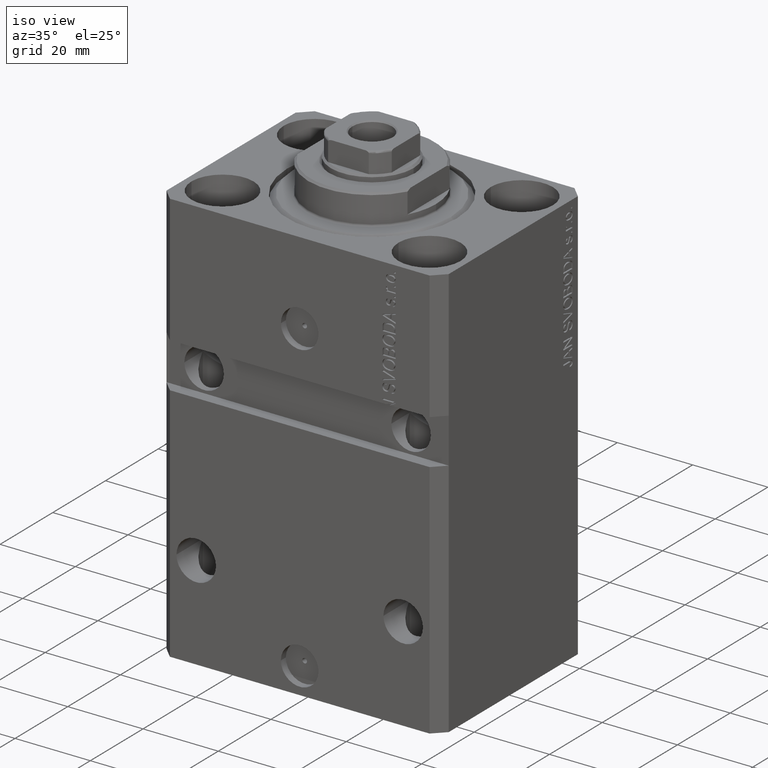
[diagram: clean part render]
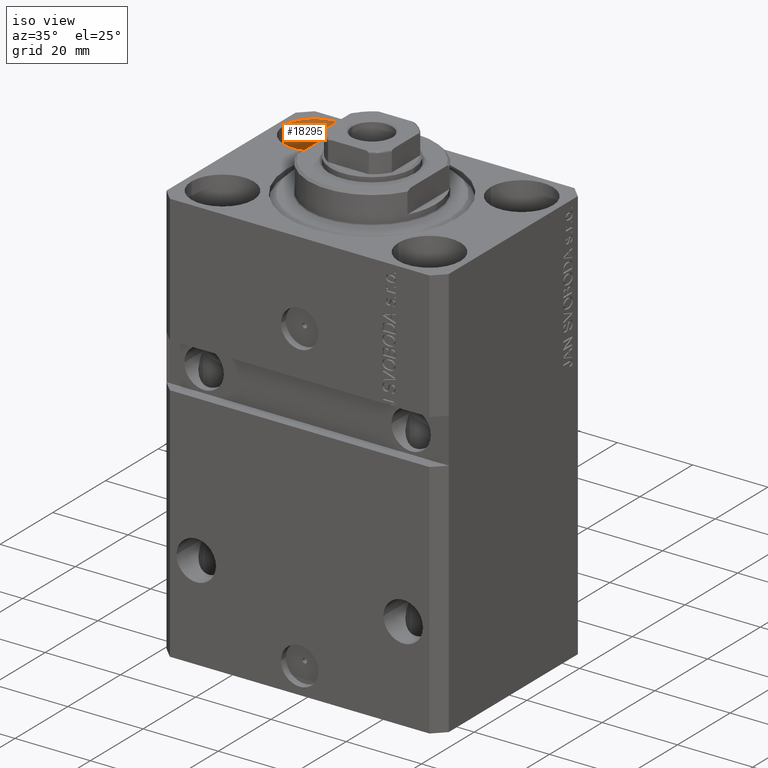
[diagram: same view with one face highlighted and labeled with its STEP entity id]
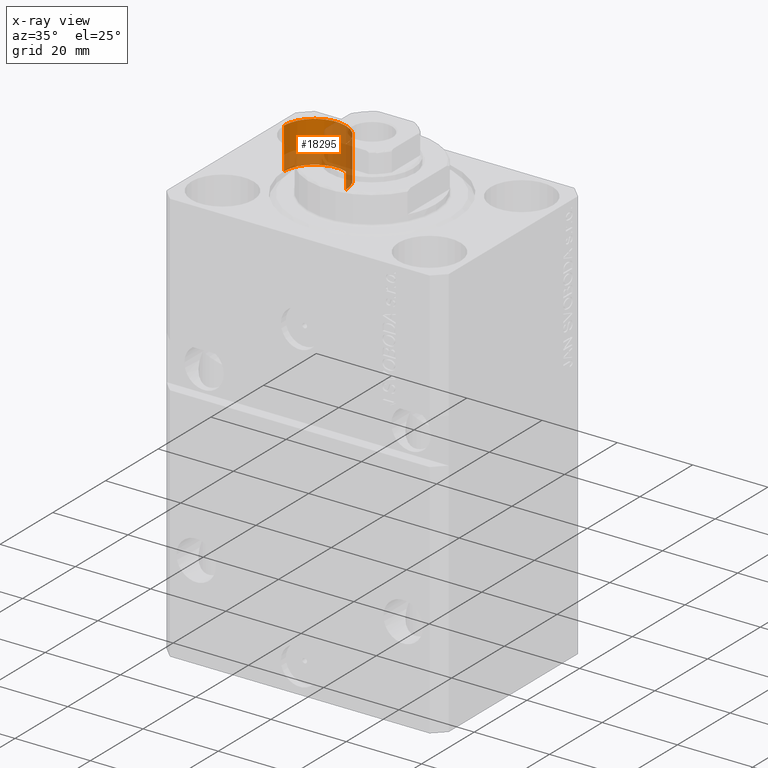
[diagram: x-ray of the same camera — body ghosted, the highlighted face saturated]
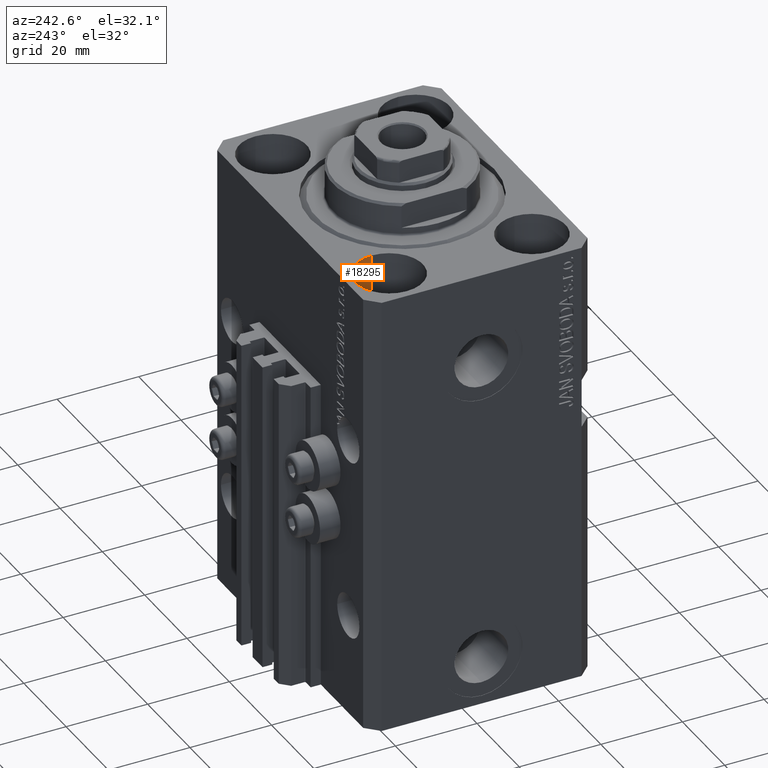
[diagram: same view with one face highlighted and labeled with its STEP entity id]
A machine part, iso view. The second image highlights one B-rep face of the part: STEP entity #18295.
The next image is the same camera in x-ray: the body ghosted, the highlighted face saturated — about 64% of this face is hidden behind the body in this view.
A second angle (auxiliary view) of the same face is appended — the face is thin or edge-on in the first view.
In plain terms, the highlighted cylindrical surface (partial cylindrical patch) has radius 8.25 mm, axis along (0, 0, 1).
Its self-contained STEP definition (entity closure, byte-faithful):
#548 = CIRCLE ( 'NONE', #26581, 8.250000000000000000 ) ;
#651 = AXIS2_PLACEMENT_3D ( 'NONE', #40420, #33707, #21997 ) ;
#1802 = ORIENTED_EDGE ( 'NONE', *, *, #18086, .T. ) ;
#4243 = CARTESIAN_POINT ( 'NONE',  ( -35.75000000000000711, 17.50000000000000000, -11.00000000000000000 ) ) ;
#5746 = AXIS2_PLACEMENT_3D ( 'NONE', #47060, #14278, #28880 ) ;
#7991 = ORIENTED_EDGE ( 'NONE', *, *, #26830, .T. ) ;
#8756 = EDGE_LOOP ( 'NONE', ( #21870, #44146, #1802, #7991 ) ) ;
#8839 = VECTOR ( 'NONE', #19573, 1000.000000000000000 ) ;
#9495 = LINE ( 'NONE', #31046, #8839 ) ;
#11828 = DIRECTION ( 'NONE',  ( -0.000000000000000000, -0.000000000000000000, 1.000000000000000000 ) ) ;
#12206 = VECTOR ( 'NONE', #11828, 1000.000000000000000 ) ;
#12536 = LINE ( 'NONE', #23795, #12206 ) ;
#14278 = DIRECTION ( 'NONE',  ( -0.000000000000000000, -0.000000000000000000, 1.000000000000000000 ) ) ;
#14512 = DIRECTION ( 'NONE',  ( 0.000000000000000000, 0.000000000000000000, 1.000000000000000000 ) ) ;
#18086 = EDGE_CURVE ( 'NONE', #43465, #30549, #9495, .T. ) ;
#18295 = ADVANCED_FACE ( 'NONE', ( #21470 ), #32470, .F. ) ;
#19573 = DIRECTION ( 'NONE',  ( -0.000000000000000000, -0.000000000000000000, 1.000000000000000000 ) ) ;
#21324 = CIRCLE ( 'NONE', #651, 8.250000000000000000 ) ;
#21470 = FACE_OUTER_BOUND ( 'NONE', #8756, .T. ) ;
#21870 = ORIENTED_EDGE ( 'NONE', *, *, #35131, .F. ) ;
#21997 = DIRECTION ( 'NONE',  ( 1.000000000000000000, 0.000000000000000000, 0.000000000000000000 ) ) ;
#22156 = DIRECTION ( 'NONE',  ( 1.000000000000000000, 0.000000000000000000, 0.000000000000000000 ) ) ;
#23177 = VERTEX_POINT ( 'NONE', #4243 ) ;
#23795 = CARTESIAN_POINT ( 'NONE',  ( -35.75000000000000711, 17.50000000000000000, -11.00000000000000000 ) ) ;
#26581 = AXIS2_PLACEMENT_3D ( 'NONE', #47286, #14512, #22156 ) ;
#26830 = EDGE_CURVE ( 'NONE', #30549, #36800, #548, .T. ) ;
#28880 = DIRECTION ( 'NONE',  ( 1.000000000000000000, 0.000000000000000000, 0.000000000000000000 ) ) ;
#28940 = EDGE_CURVE ( 'NONE', #43465, #23177, #21324, .T. ) ;
#30549 = VERTEX_POINT ( 'NONE', #37282 ) ;
#31046 = CARTESIAN_POINT ( 'NONE',  ( -19.25000000000000355, 17.50000000000000000, -11.00000000000000000 ) ) ;
#32470 = CYLINDRICAL_SURFACE ( 'NONE', #5746, 8.250000000000000000 ) ;
#33707 = DIRECTION ( 'NONE',  ( 0.000000000000000000, 0.000000000000000000, 1.000000000000000000 ) ) ;
#35131 = EDGE_CURVE ( 'NONE', #23177, #36800, #12536, .T. ) ;
#36800 = VERTEX_POINT ( 'NONE', #40186 ) ;
#37282 = CARTESIAN_POINT ( 'NONE',  ( -19.25000000000000355, 17.50000000000000000, 0.000000000000000000 ) ) ;
#40186 = CARTESIAN_POINT ( 'NONE',  ( -35.75000000000000711, 17.50000000000000000, 0.000000000000000000 ) ) ;
#40420 = CARTESIAN_POINT ( 'NONE',  ( -27.50000000000000355, 17.50000000000000000, -11.00000000000000000 ) ) ;
#41478 = CARTESIAN_POINT ( 'NONE',  ( -19.25000000000000355, 17.50000000000000000, -11.00000000000000000 ) ) ;
#43465 = VERTEX_POINT ( 'NONE', #41478 ) ;
#44146 = ORIENTED_EDGE ( 'NONE', *, *, #28940, .F. ) ;
#47060 = CARTESIAN_POINT ( 'NONE',  ( -27.50000000000000355, 17.50000000000000000, -11.00000000000000000 ) ) ;
#47286 = CARTESIAN_POINT ( 'NONE',  ( -27.50000000000000355, 17.50000000000000000, 0.000000000000000000 ) ) ;